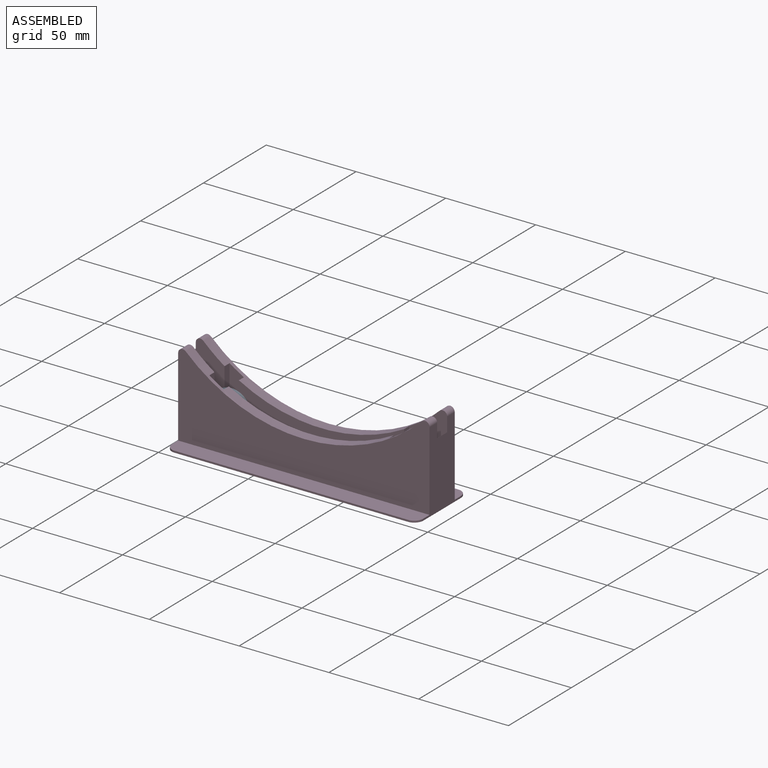
[diagram: assembled view]
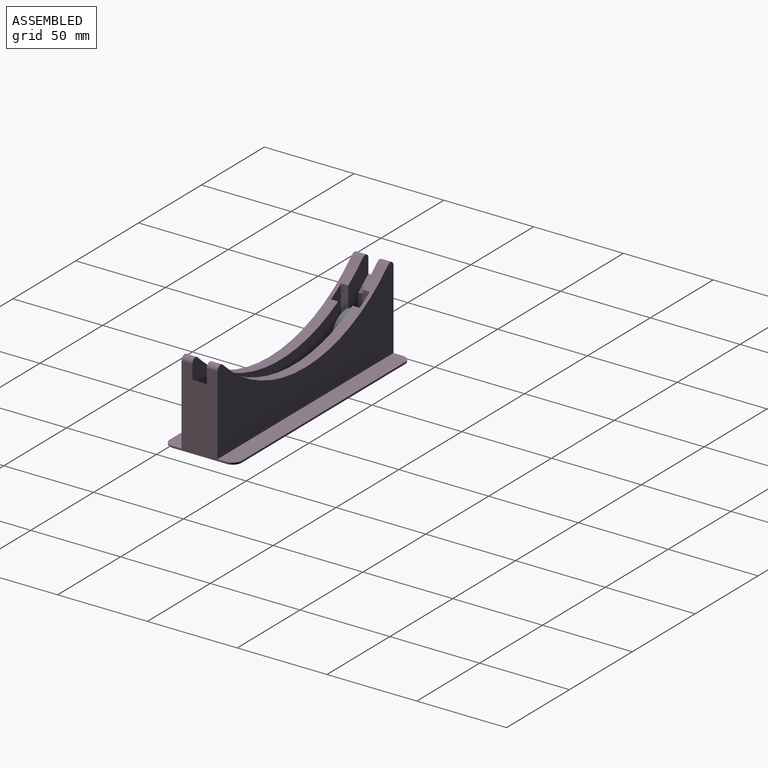
[diagram: assembled view, second angle]
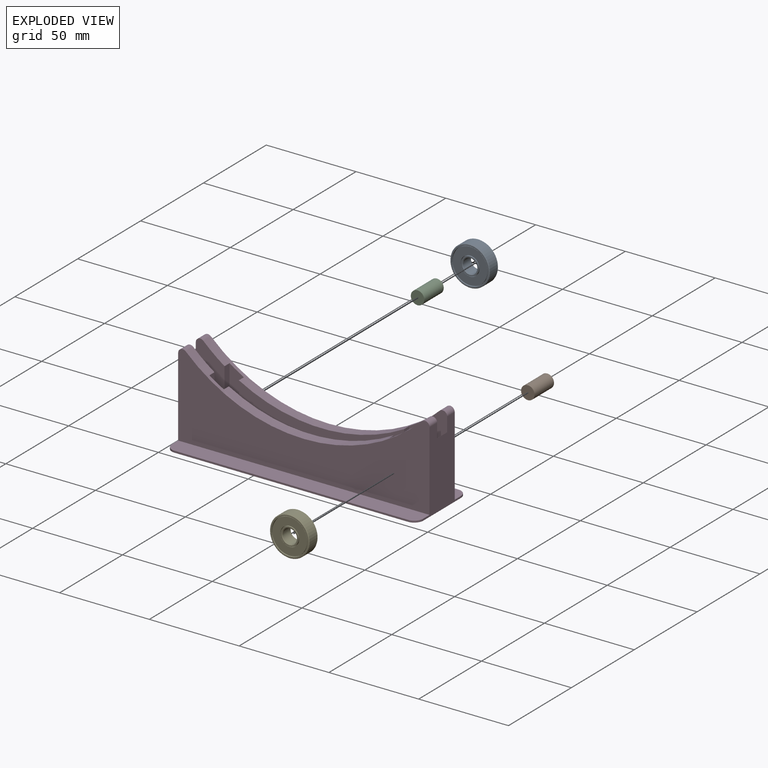
[diagram: exploded view]
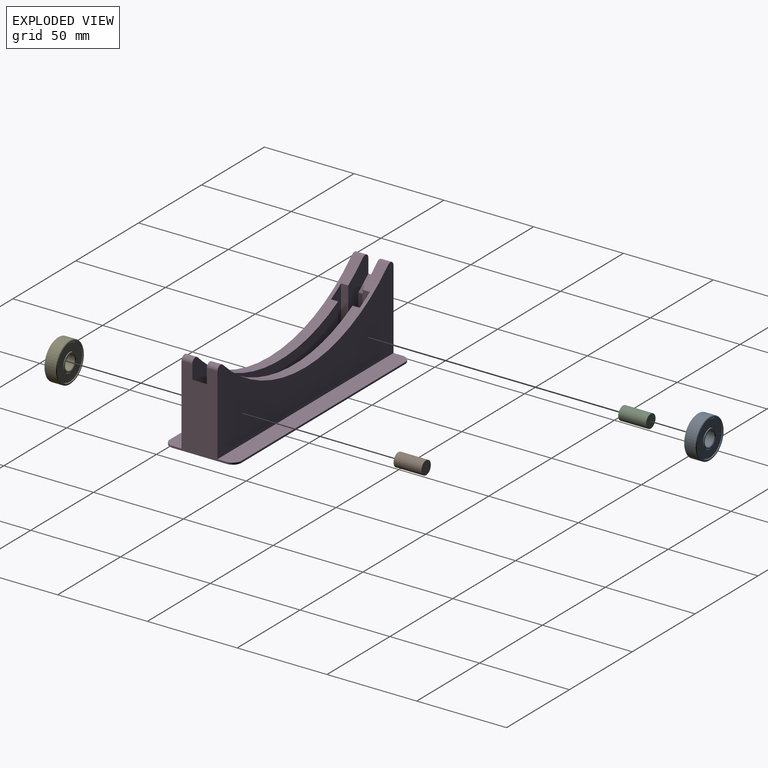
[diagram: exploded view, second angle]
ASSEMBLY  parts=5 mates=4
PART A: 32 faces, bbox 22x7x22 mm
  f0: cylinder r=10mm len=20mm, axis (0,1,0), area 62.8mm2, adj f1,f19
  f1: plane 21.34x21.34mm, normal (0,1,0), area 43.5mm2, adj f0,f21
  f2: cylinder r=11mm len=22mm, axis (0,1,0), area 438.2mm2, adj f20,f21
  f3: plane 21.34x21.34mm, normal (0,-1,0), area 43.5mm2, adj f4,f20
  f4: cylinder r=10mm len=20mm, axis (0,1,0), area 62.8mm2, adj f3,f5
  f5: plane 20x20mm, normal (0,-1,0), area 18.1mm2, adj f4,f6
  f6: cylinder r=9.71mm len=19.42mm, axis (0,1,0), area 44.7mm2, adj f5,f7
  f7: plane 19.42x19.42mm, normal (0,-1,0), area 208.1mm2, adj f6,f8
  f8: cylinder r=5.29mm len=10.58mm, axis (0,1,0), area 24.4mm2, adj f7,f9
  f9: plane 10.58x10.58mm, normal (0,-1,0), area 9.4mm2, adj f8,f10
  f10: cylinder r=5mm len=10mm, axis (0,1,0), area 31.4mm2, adj f9,f11
  f11: plane 10x10mm, normal (0,-1,0), area 19.6mm2, adj f10,f22
  f12: cylinder r=4mm len=8mm, axis (0,1,0), area 159.3mm2, adj f22,f23
  f13: plane 10x10mm, normal (0,1,0), area 19.6mm2, adj f14,f23
  f14: cylinder r=5mm len=10mm, axis (0,1,0), area 31.4mm2, adj f13,f15
  f15: plane 10.58x10.58mm, normal (0,1,0), area 9.4mm2, adj f14,f16
  f16: cylinder r=5.29mm len=10.58mm, axis (0,1,0), area 24.4mm2, adj f15,f17
  f17: plane 19.42x19.42mm, normal (0,1,0), area 208.1mm2, adj f16,f18
  f18: cylinder r=9.71mm len=19.42mm, axis (0,1,0), area 44.7mm2, adj f17,f19
  f19: plane 20x20mm, normal (0,1,0), area 18.1mm2, adj f0,f18
  f20: cone r=11mm half-angle=45deg, axis (0,1,0), area 31.8mm2, adj f2,f3
  f21: cone r=10.67mm half-angle=45deg, axis (0,-1,0), area 31.8mm2, adj f1,f2
  f22: cone r=4.33mm half-angle=45deg, axis (0,-1,0), area 12.2mm2, adj f11,f12
  f23: cone r=4mm half-angle=45deg, axis (0,1,0), area 12.2mm2, adj f12,f13
  f24: cylinder r=8.16mm len=16.32mm, axis (0,1,0), area 48.4mm2, adj f25,f31
  f25: torus R=7.5mm, axis (0,1,0), area 219.3mm2, adj f24,f26
  f26: cylinder r=8.16mm len=16.32mm, axis (0,1,0), area 48.4mm2, adj f25,f27
  f27: plane 16.32x16.32mm, normal (0,-1,0), area 62.1mm2, adj f26,f28
  f28: cylinder r=6.84mm len=13.68mm, axis (0,1,0), area 40.6mm2, adj f27,f29
  f29: torus R=7.5mm, axis (0,1,0), area 153.3mm2, adj f28,f30
  f30: cylinder r=6.84mm len=13.68mm, axis (0,1,0), area 40.6mm2, adj f29,f31
  f31: plane 16.32x16.32mm, normal (0,1,0), area 62.1mm2, adj f24,f30
PART B: 3 faces, bbox 7.5x7.5x15.5 mm
  f0: cylinder r=3.75mm len=15.5mm, axis (0,0,-1), area 365.2mm2, adj f1,f2
  f1: plane 7.5x7.5mm, normal (0,0,1), area 44.2mm2, adj f0
  f2: plane 7.5x7.5mm, normal (0,0,-1), area 44.2mm2, adj f0
PART C: same geometry as B
PART D: 46 faces, bbox 140x40x47.6 mm
  f0: cylinder r=95mm len=131.54mm, axis (0,1,0), area 796.4mm2, adj f2,f9,f11,f12,f29,f31,f32,f33
  f1: cylinder r=95mm len=131.54mm, axis (0,1,0), area 796.4mm2, adj f3,f8,f13,f14,f21,f23,f24,f25
  f2: plane 140x43.24mm, normal (0,-1,0), area 1985.5mm2, adj f0,f4,f5,f6,f7,f10,f11,f12
  f3: plane 140x43.24mm, normal (0,1,0), area 1985.5mm2, adj f1,f4,f5,f6,f7,f10,f13,f14
  f4: cylinder r=105mm len=8mm, axis (0,-1,0), area 82.4mm2, adj f2,f3,f6,f19
  f5: cylinder r=105mm len=76mm, axis (0,-1,0), area 622.1mm2, adj f2,f3,f15,f18
  f6: plane 45.14x30mm, normal (-1,0,0), area 849.6mm2, adj f2,f3,f4,f8,f9,f11,f13,f37
  f7: plane 45.14x30mm, normal (1,0,0), area 849.6mm2, adj f2,f3,f8,f9,f10,f12,f14,f37
  f8: plane 140x46.64mm, normal (0,-1,0), area 4042.5mm2, adj f1,f6,f7,f13,f14,f40
  f9: plane 140x46.64mm, normal (0,1,0), area 4042.5mm2, adj f0,f6,f7,f11,f12,f37
  f10: cylinder r=105mm len=8mm, axis (0,-1,0), area 82.4mm2, adj f2,f3,f7,f16
  f11: cylinder r=2.5mm len=6mm, axis (0,1,0), area 35mm2, adj f0,f2,f6,f9
  f12: cylinder r=2.5mm len=6mm, axis (0,1,0), area 35mm2, adj f0,f2,f7,f9
  f13: cylinder r=2.5mm len=6mm, axis (0,1,0), area 35mm2, adj f1,f3,f6,f8
  f14: cylinder r=2.5mm len=6mm, axis (0,1,0), area 35mm2, adj f1,f3,f7,f8
  f15: plane 8x1.22mm, normal (1,0,0), area 9.7mm2, adj f2,f3,f5,f17
  f16: plane 14.36x8mm, normal (-1,0,0), area 114.9mm2, adj f2,f3,f10,f17
  f17: cylinder r=12mm len=24mm, axis (0,-1,0), area 301.6mm2, adj f2,f3,f15,f16
  f18: plane 8x1.22mm, normal (-1,0,0), area 9.7mm2, adj f2,f3,f5,f20
  f19: plane 14.36x8mm, normal (1,0,0), area 114.9mm2, adj f2,f3,f4,f20
  f20: cylinder r=12mm len=24mm, axis (0,-1,0), area 301.6mm2, adj f2,f3,f18,f19
  f21: plane 20.94x4mm, normal (-1,0,0), area 83.8mm2, adj f1,f3,f22,f24
  f22: cylinder r=4mm len=8mm, axis (0,-1,0), area 50.3mm2, adj f3,f21,f23,f24
  f23: plane 15.98x4mm, normal (1,0,0), area 63.9mm2, adj f1,f3,f22,f24
  f24: plane 24.94x8mm, normal (0,1,0), area 172.1mm2, adj f1,f21,f22,f23
  f25: plane 15.98x4mm, normal (-1,0,0), area 63.9mm2, adj f1,f3,f27,f28
  f26: plane 20.94x4mm, normal (1,0,0), area 83.8mm2, adj f1,f3,f27,f28
  f27: cylinder r=4mm len=8mm, axis (0,-1,0), area 50.3mm2, adj f3,f25,f26,f28
  f28: plane 24.94x8mm, normal (0,1,0), area 172.1mm2, adj f1,f25,f26,f27
  f29: plane 15.98x4mm, normal (1,0,0), area 63.9mm2, adj f0,f2,f30,f32
  f30: cylinder r=4mm len=8mm, axis (0,-1,0), area 50.3mm2, adj f2,f29,f31,f32
  f31: plane 20.94x4mm, normal (-1,0,0), area 83.8mm2, adj f0,f2,f30,f32
  f32: plane 24.94x8mm, normal (0,-1,0), area 172.1mm2, adj f0,f29,f30,f31
  f33: plane 15.98x4mm, normal (-1,0,0), area 63.9mm2, adj f0,f2,f34,f36
  f34: cylinder r=4mm len=8mm, axis (0,-1,0), area 50.3mm2, adj f2,f33,f35,f36
  f35: plane 20.94x4mm, normal (1,0,0), area 83.8mm2, adj f0,f2,f34,f36
  f36: plane 24.94x8mm, normal (0,-1,0), area 172.1mm2, adj f0,f33,f34,f35
  f37: plane 140x10mm, normal (0,0,1), area 1389.3mm2, adj f6,f7,f9,f39,f44,f45
  f38: plane 130x1mm, normal (0,-1,0), area 130mm2, adj f40,f41,f42,f43
  f39: plane 130x1mm, normal (0,1,0), area 130mm2, adj f37,f41,f44,f45
  f40: plane 140x10mm, normal (0,0,1), area 1389.3mm2, adj f6,f7,f8,f38,f42,f43
  f41: plane 140x40mm, normal (0,0,-1), area 5578.5mm2, adj f6,f7,f38,f39,f42,f43,f44,f45
  f42: cylinder r=5mm len=5mm, axis (0,0,-1), area 7.9mm2, adj f6,f38,f40,f41
  f43: cylinder r=5mm len=5mm, axis (0,0,1), area 7.9mm2, adj f7,f38,f40,f41
  f44: cylinder r=5mm len=5mm, axis (0,0,-1), area 7.9mm2, adj f7,f37,f39,f41
  f45: cylinder r=5mm len=5mm, axis (0,0,1), area 7.9mm2, adj f6,f37,f39,f41
PART E: same geometry as A
PLACE A rot(axis=(1,0,0),180deg) t=(-25.89,20.65,2.51)mm
PLACE B rot(axis=(-1,0,0),90deg) t=(74.11,12.38,2.51)mm
PLACE C rot(axis=(-1,0,0),90deg) t=(-25.89,12.38,2.51)mm
PLACE D t=(24.11,19.88,-13.39)mm
PLACE E t=(74.11,19.38,2.51)mm
MATE cylindrical B.f0 <-> D.f17  axis (0,1,0) through (74.11,27.88,2.51)mm
MATE cylindrical C.f0 <-> D.f20  axis (0,1,0) through (-25.89,27.88,2.51)mm
MATE cylindrical A.f0 <-> D.f20  axis (0,1,0) through (-25.89,23.88,2.51)mm
MATE cylindrical E.f0 <-> D.f17  axis (0,-1,0) through (74.11,15.88,2.51)mm
